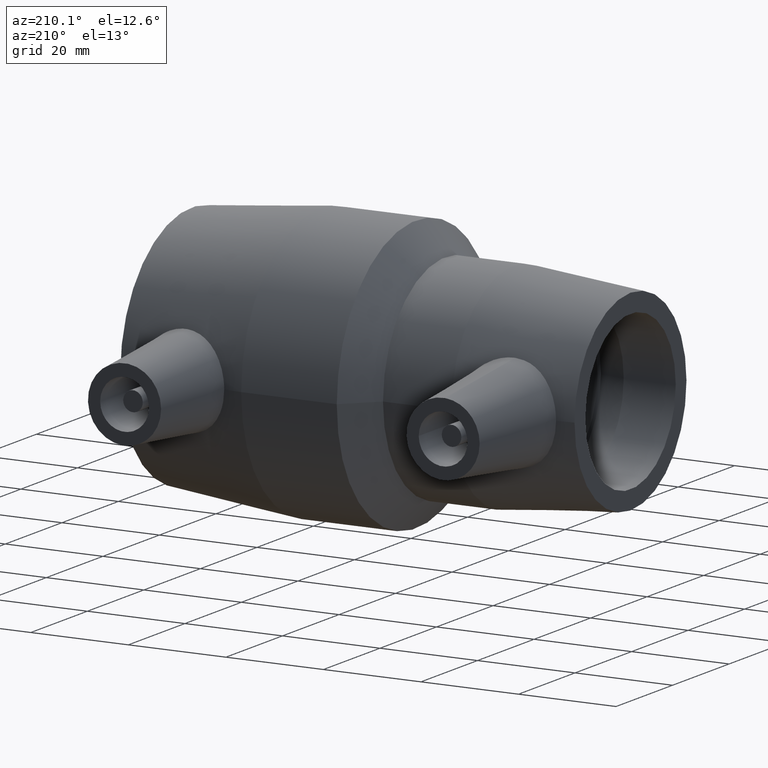
[diagram: clean part render]
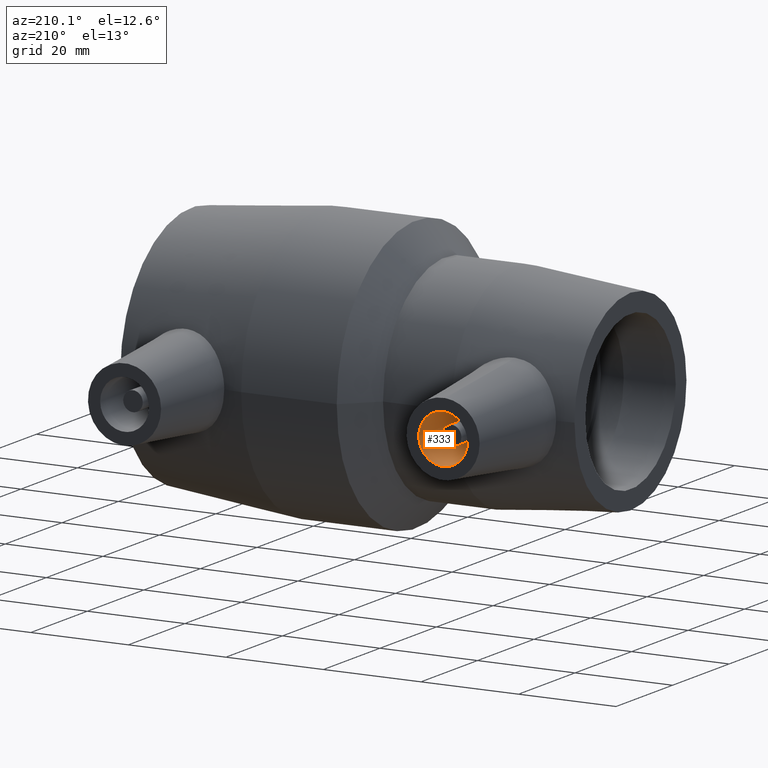
[diagram: same view with one face highlighted and labeled with its STEP entity id]
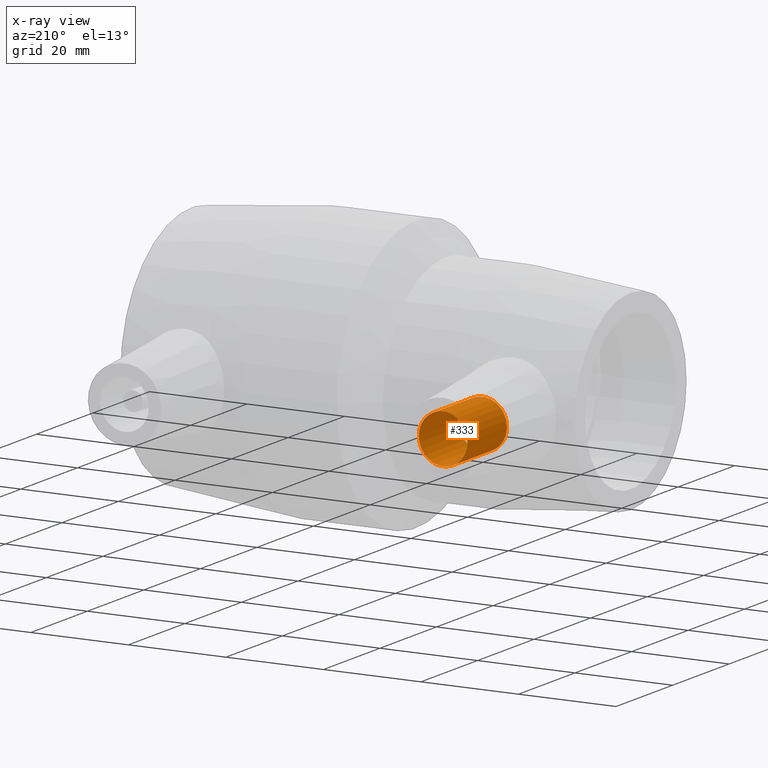
[diagram: x-ray of the same camera — body ghosted, the highlighted face saturated]
A machine part, auxiliary view. The second image highlights one B-rep face of the part: STEP entity #333.
The next image is the same camera in x-ray: the body ghosted, the highlighted face saturated — about 0% of this face is hidden behind the body in this view.
In plain terms, the highlighted cylindrical surface (bore or boss wall) has radius 5 mm, axis along (0, -1, 0).
Its self-contained STEP definition (entity closure, byte-faithful):
#31=FACE_BOUND('',#113,.T.);
#59=CYLINDRICAL_SURFACE('',#373,5.);
#75=FACE_OUTER_BOUND('',#112,.T.);
#112=EDGE_LOOP('',(#265));
#113=EDGE_LOOP('',(#266));
#167=CIRCLE('',#374,5.);
#168=CIRCLE('',#375,5.);
#197=VERTEX_POINT('',#599);
#198=VERTEX_POINT('',#601);
#228=EDGE_CURVE('',#197,#197,#167,.T.);
#229=EDGE_CURVE('',#198,#198,#168,.T.);
#265=ORIENTED_EDGE('',*,*,#228,.T.);
#266=ORIENTED_EDGE('',*,*,#229,.F.);
#333=ADVANCED_FACE('',(#75,#31),#59,.F.);
#373=AXIS2_PLACEMENT_3D('',#598,#450,#451);
#374=AXIS2_PLACEMENT_3D('',#600,#452,#453);
#375=AXIS2_PLACEMENT_3D('',#602,#454,#455);
#450=DIRECTION('center_axis',(0.,-1.,0.));
#451=DIRECTION('ref_axis',(-1.,0.,0.));
#452=DIRECTION('center_axis',(0.,-1.,0.));
#453=DIRECTION('ref_axis',(-1.,0.,0.));
#454=DIRECTION('center_axis',(0.,-1.,0.));
#455=DIRECTION('ref_axis',(-1.,0.,0.));
#598=CARTESIAN_POINT('Origin',(-31.5,43.,0.));
#599=CARTESIAN_POINT('',(-26.5,29.,-6.12323399573677E-16));
#600=CARTESIAN_POINT('Origin',(-31.5,29.,0.));
#601=CARTESIAN_POINT('',(-26.5,43.,-6.12323399573677E-16));
#602=CARTESIAN_POINT('Origin',(-31.5,43.,0.));